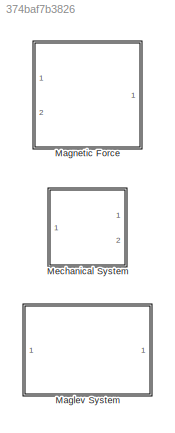
MODEL slx_374baf7b3826
KIND library
CONFIG AbsTol = auto
CONFIG EnableMultiTasking = off
CONFIG FixedStep = auto
CONFIG MaxStep = auto
CONFIG MinStep = auto
CONFIG RelTol = 1e-3
CONFIG SampleTimeConstraint = Unconstrained
CONFIG SolverName = VariableStepAuto
CONFIG StartTime = 0.0
CONFIG StopTime = 10.0
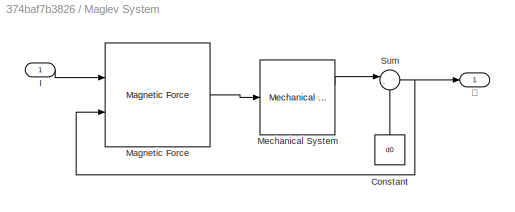
BLOCK [SubSystem] Maglev System
  Ports = [1, 1]
  RequestExecContextInheritance = off
BLOCK [Constant] Maglev System/Constant
  NameLocation = right
  Value = d0
BLOCK [Inport] Maglev System/I
BLOCK [Reference] Maglev System/Magnetic Force  REF=$bdroot/Magnetic Force
  Ports = [2, 1]
  SourceBlock = $bdroot/Magnetic Force
  SourceType = Magnetic Force
BLOCK [Reference] Maglev System/Mechanical System  REF=$bdroot/Mechanical System
  Ports = [1, 2]
  SourceBlock = $bdroot/Mechanical System
  SourceType = Mechanical System
BLOCK [Sum] Maglev System/Sum
  Inputs = |-+
  Ports = [2, 1]
BLOCK [Outport] Maglev System/𝛿
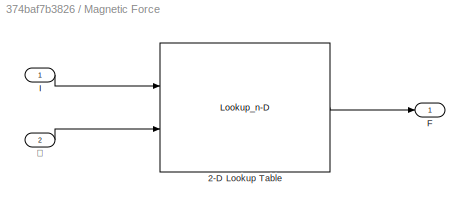
BLOCK [SubSystem] Magnetic Force
  Ports = [2, 1]
  RequestExecContextInheritance = off
BLOCK [Lookup_n-D] Magnetic Force/2-D Lookup Table
  BreakpointsForDimension1 = I
  BreakpointsForDimension2 = deltas
  DiagnosticForOutOfRangeInput = Warning
  ExtrapMethod = Cubic spline
  InputPortMap = u0,u1
  InternalRulePriority = Speed
  InterpMethod = Cubic spline
  Ports = [2, 1]
  RndMeth = Simplest
  Table = forceArray
BLOCK [Outport] Magnetic Force/F
BLOCK [Inport] Magnetic Force/I
BLOCK [Inport] Magnetic Force/𝛿
  Port = 2
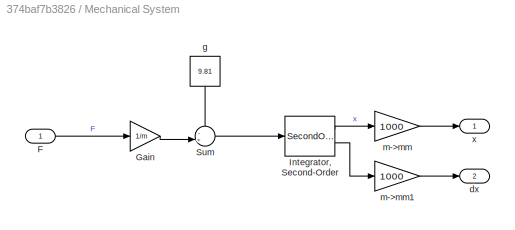
BLOCK [SubSystem] Mechanical System
  Ports = [1, 2]
  RequestExecContextInheritance = off
BLOCK [Inport] Mechanical System/F
BLOCK [Gain] Mechanical System/Gain
  Gain = 1/m
BLOCK [SecondOrderIntegrator] Mechanical System/Integrator, Second-Order
  ICX = (d0-start)/1000
  LimitX = on
  LowerLimitX = 0
  Ports = [1, 2]
  UpperLimitX = d0/1000
BLOCK [Sum] Mechanical System/Sum
  Inputs = -+|
  Ports = [2, 1]
BLOCK [Outport] Mechanical System/dx
  Port = 2
BLOCK [Constant] Mechanical System/g
  NameLocation = left
  Value = 9.81
BLOCK [Gain] Mechanical System/m->mm
  Gain = 1000
BLOCK [Gain] Mechanical System/m->mm1
  Gain = 1000
BLOCK [Outport] Mechanical System/x
LINE Maglev System/Constant:1 -> Maglev System/Sum:2
LINE Maglev System/I:1 -> Maglev System/Magnetic Force:1
LINE Maglev System/Magnetic Force:1 -> Maglev System/Mechanical System:1
LINE Maglev System/Mechanical System:1 -> Maglev System/Sum:1
NET Maglev System/Sum:1 -> Maglev System/Magnetic Force:2, Maglev System/𝛿:1
LINE Magnetic Force/2-D Lookup Table:1 -> Magnetic Force/F:1
LINE Magnetic Force/I:1 -> Magnetic Force/2-D Lookup Table:1
LINE Magnetic Force/𝛿:1 -> Magnetic Force/2-D Lookup Table:2
LINE Mechanical System/F:1 -> Mechanical System/Gain:1
LINE Mechanical System/Gain:1 -> Mechanical System/Sum:2
LINE Mechanical System/Integrator, Second-Order:1 -> Mechanical System/m->mm:1
LINE Mechanical System/Integrator, Second-Order:2 -> Mechanical System/m->mm1:1
LINE Mechanical System/Sum:1 -> Mechanical System/Integrator, Second-Order:1
LINE Mechanical System/g:1 -> Mechanical System/Sum:1
LINE Mechanical System/m->mm1:1 -> Mechanical System/dx:1
LINE Mechanical System/m->mm:1 -> Mechanical System/x:1
note: NET lines group one-source signal fan-out (src -> all destinations, sorted); 1:1 wires keep LINE
